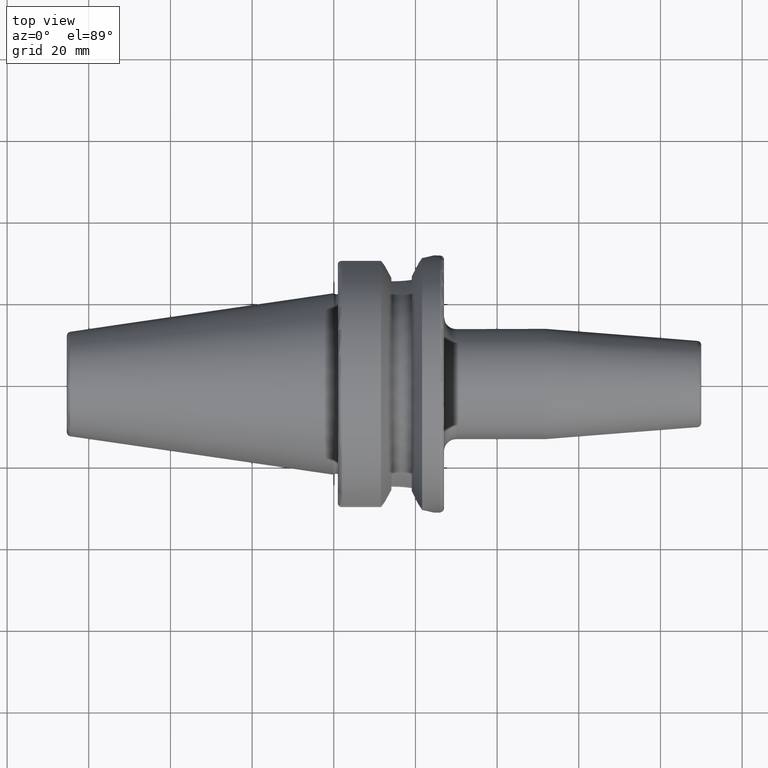
[diagram: clean part render]
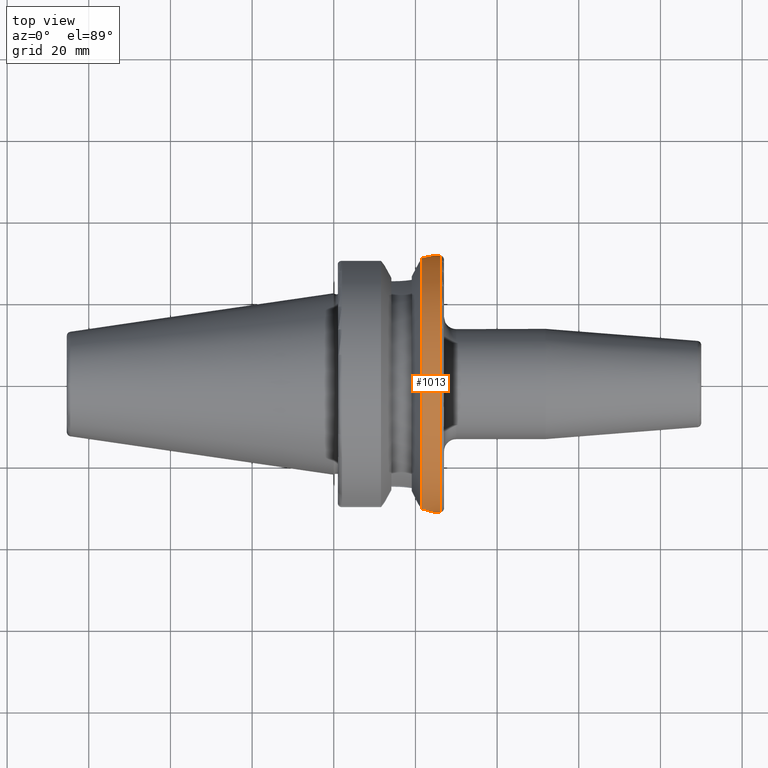
[diagram: same view with one face highlighted and labeled with its STEP entity id]
A machine part, top view. The second image highlights one B-rep face of the part: STEP entity #1013.
In plain terms, the highlighted cylindrical surface (bore or boss wall) has radius 31.5 mm, axis along (1, 0, 0).
Its self-contained STEP definition (entity closure, byte-faithful):
#28=B_SPLINE_CURVE_WITH_KNOTS('',3,(#1632,#1633,#1634,#1635,#1636,#1637,
#1638),.UNSPECIFIED.,.F.,.F.,(4,1,1,1,4),(-1.84224958312964,-1.66410332340556,
-1.48595706368147,-1.30781080395739,-1.21900897588892),.UNSPECIFIED.);
#29=B_SPLINE_CURVE_WITH_KNOTS('',3,(#1640,#1641,#1642,#1643,#1644,#1645),
 .UNSPECIFIED.,.F.,.F.,(4,1,1,4),(-1.21900897588892,-1.12966454423331,-0.773372024785148,
-0.595225765061066),.UNSPECIFIED.);
#32=B_SPLINE_CURVE_WITH_KNOTS('',3,(#1677,#1678,#1679,#1680,#1681,#1682,
#1683,#1684,#1685),.UNSPECIFIED.,.F.,.F.,(4,1,1,1,1,1,4),(-4.27980461993707,
-4.10165836021299,-3.92351210048891,-3.74536584076483,-3.56721958104074,
-3.21092706159258,-3.0327808018685),.UNSPECIFIED.);
#68=LINE('',#1673,#126);
#126=VECTOR('',#1292,31.5);
#182=CYLINDRICAL_SURFACE('',#1118,31.5);
#237=FACE_OUTER_BOUND('',#302,.T.);
#302=EDGE_LOOP('',(#736,#737,#738,#739,#740,#741,#742,#743,#744));
#372=CIRCLE('',#1119,31.5);
#373=CIRCLE('',#1120,31.5000000000001);
#374=CIRCLE('',#1121,31.5000000000001);
#375=CIRCLE('',#1122,31.5);
#436=VERTEX_POINT('',#1617);
#437=VERTEX_POINT('',#1631);
#438=VERTEX_POINT('',#1639);
#440=VERTEX_POINT('',#1670);
#441=VERTEX_POINT('',#1671);
#442=VERTEX_POINT('',#1674);
#443=VERTEX_POINT('',#1676);
#548=EDGE_CURVE('',#436,#437,#28,.T.);
#549=EDGE_CURVE('',#437,#438,#29,.T.);
#552=EDGE_CURVE('',#440,#441,#372,.T.);
#553=EDGE_CURVE('',#440,#437,#68,.T.);
#554=EDGE_CURVE('',#436,#442,#373,.T.);
#555=EDGE_CURVE('',#443,#442,#32,.T.);
#556=EDGE_CURVE('',#443,#438,#374,.T.);
#557=EDGE_CURVE('',#441,#440,#375,.T.);
#736=ORIENTED_EDGE('',*,*,#552,.F.);
#737=ORIENTED_EDGE('',*,*,#553,.T.);
#738=ORIENTED_EDGE('',*,*,#548,.F.);
#739=ORIENTED_EDGE('',*,*,#554,.T.);
#740=ORIENTED_EDGE('',*,*,#555,.F.);
#741=ORIENTED_EDGE('',*,*,#556,.T.);
#742=ORIENTED_EDGE('',*,*,#549,.F.);
#743=ORIENTED_EDGE('',*,*,#553,.F.);
#744=ORIENTED_EDGE('',*,*,#557,.F.);
#1013=ADVANCED_FACE('',(#237),#182,.T.);
#1118=AXIS2_PLACEMENT_3D('',#1669,#1288,#1289);
#1119=AXIS2_PLACEMENT_3D('',#1672,#1290,#1291);
#1120=AXIS2_PLACEMENT_3D('',#1675,#1293,#1294);
#1121=AXIS2_PLACEMENT_3D('',#1686,#1295,#1296);
#1122=AXIS2_PLACEMENT_3D('',#1687,#1297,#1298);
#1288=DIRECTION('center_axis',(1.,0.,0.));
#1289=DIRECTION('ref_axis',(0.,1.,0.));
#1290=DIRECTION('center_axis',(1.,0.,0.));
#1291=DIRECTION('ref_axis',(0.,0.,-1.));
#1292=DIRECTION('',(-1.,0.,0.));
#1293=DIRECTION('center_axis',(1.,0.,0.));
#1294=DIRECTION('ref_axis',(0.,0.,-1.));
#1295=DIRECTION('center_axis',(1.,0.,0.));
#1296=DIRECTION('ref_axis',(0.,0.,-1.));
#1297=DIRECTION('center_axis',(1.,0.,0.));
#1298=DIRECTION('ref_axis',(0.,0.,-1.));
#1617=CARTESIAN_POINT('',(21.6299421260813,-30.7246846942765,-6.93811567649096));
#1631=CARTESIAN_POINT('',(24.6023010404448,-31.4993610462889,-8.83846889134085E-7));
#1632=CARTESIAN_POINT('Ctrl Pts',(21.6299421260813,-30.7246846942765,-6.93811567649096));
#1633=CARTESIAN_POINT('Ctrl Pts',(22.1624335444602,-30.838867372093,-6.43245640940076));
#1634=CARTESIAN_POINT('Ctrl Pts',(23.1044803015597,-31.0671386251307,-5.30374072264721));
#1635=CARTESIAN_POINT('Ctrl Pts',(24.1196672590731,-31.352661678529,-3.28557095655684));
#1636=CARTESIAN_POINT('Ctrl Pts',(24.5354647073785,-31.4788959507067,-1.43930001374303));
#1637=CARTESIAN_POINT('Ctrl Pts',(24.6002612002784,-31.4989889573329,-0.358989199998285));
#1638=CARTESIAN_POINT('Ctrl Pts',(24.6007693418519,-31.4992304836744,-5.71260780179994E-7));
#1639=CARTESIAN_POINT('',(21.6309636926619,-30.7261128229805,6.93945176433101));
#1640=CARTESIAN_POINT('Ctrl Pts',(24.6024570305896,-31.5009177894469,-1.50043474533845E-7));
#1641=CARTESIAN_POINT('Ctrl Pts',(24.6029684503287,-31.5011608746879,0.361261474657823));
#1642=CARTESIAN_POINT('Ctrl Pts',(24.499226510938,-31.4698334623024,2.1612469692088));
#1643=CARTESIAN_POINT('Ctrl Pts',(23.5898637439398,-31.1885792218685,4.75965633791452));
#1644=CARTESIAN_POINT('Ctrl Pts',(22.1628051487683,-30.8401699475793,6.43443606601587));
#1645=CARTESIAN_POINT('Ctrl Pts',(21.6309636926619,-30.7261128229805,6.93945176433103));
#1669=CARTESIAN_POINT('Origin',(23.8154818463309,0.,0.));
#1670=CARTESIAN_POINT('',(26.,-31.5,-3.85763741731417E-15));
#1671=CARTESIAN_POINT('',(26.,-3.85763741731416E-15,31.5));
#1672=CARTESIAN_POINT('Origin',(26.,0.,0.));
#1673=CARTESIAN_POINT('',(23.8154818463309,-31.5,-3.85763741731417E-15));
#1674=CARTESIAN_POINT('',(21.6309636926619,30.7261128229805,-6.93945176433101));
#1675=CARTESIAN_POINT('Origin',(21.6309636926619,0.,0.));
#1676=CARTESIAN_POINT('',(21.6309636926619,30.7261128229805,6.93945176433102));
#1677=CARTESIAN_POINT('Ctrl Pts',(21.6309636926619,30.7261128229805,6.93945176433104));
#1678=CARTESIAN_POINT('Ctrl Pts',(22.1635573714016,30.8403312669906,6.4337217850321));
#1679=CARTESIAN_POINT('Ctrl Pts',(23.1058006311306,31.068676082151,5.3048310520627));
#1680=CARTESIAN_POINT('Ctrl Pts',(24.1212297261184,31.3542966844528,3.28628050888095));
#1681=CARTESIAN_POINT('Ctrl Pts',(24.6206205096058,31.5059242554325,1.06893295931041));
#1682=CARTESIAN_POINT('Ctrl Pts',(24.6286834675939,31.5098728385937,-1.79133720247253));
#1683=CARTESIAN_POINT('Ctrl Pts',(23.5898637439398,31.1885792218685,-4.75965633791448));
#1684=CARTESIAN_POINT('Ctrl Pts',(22.1628051487683,30.8401699475793,-6.43443606601586));
#1685=CARTESIAN_POINT('Ctrl Pts',(21.6309636926619,30.7261128229805,-6.93945176433103));
#1686=CARTESIAN_POINT('Origin',(21.6309636926619,0.,0.));
#1687=CARTESIAN_POINT('Origin',(26.,0.,0.));